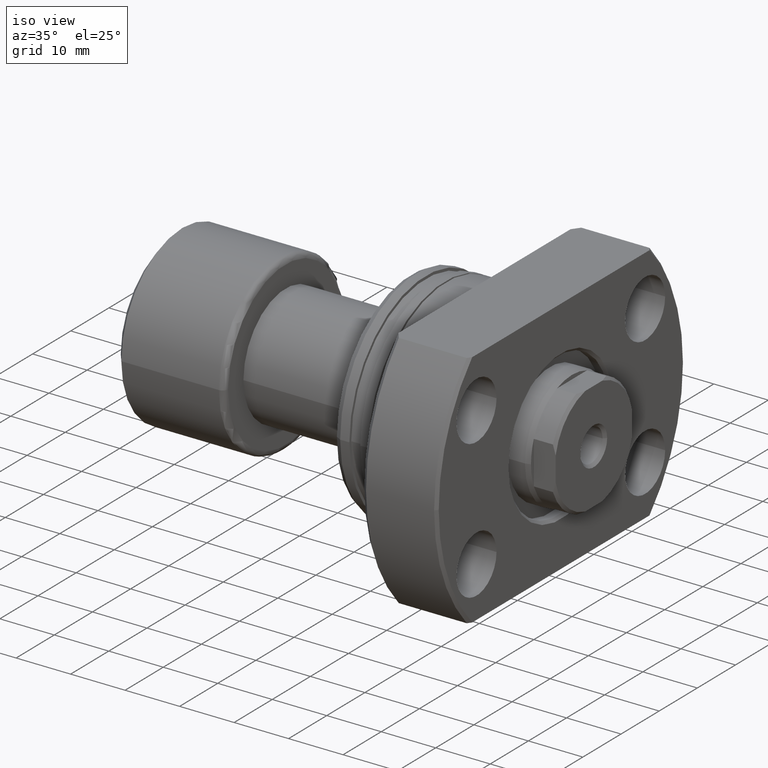
[diagram: clean part render]
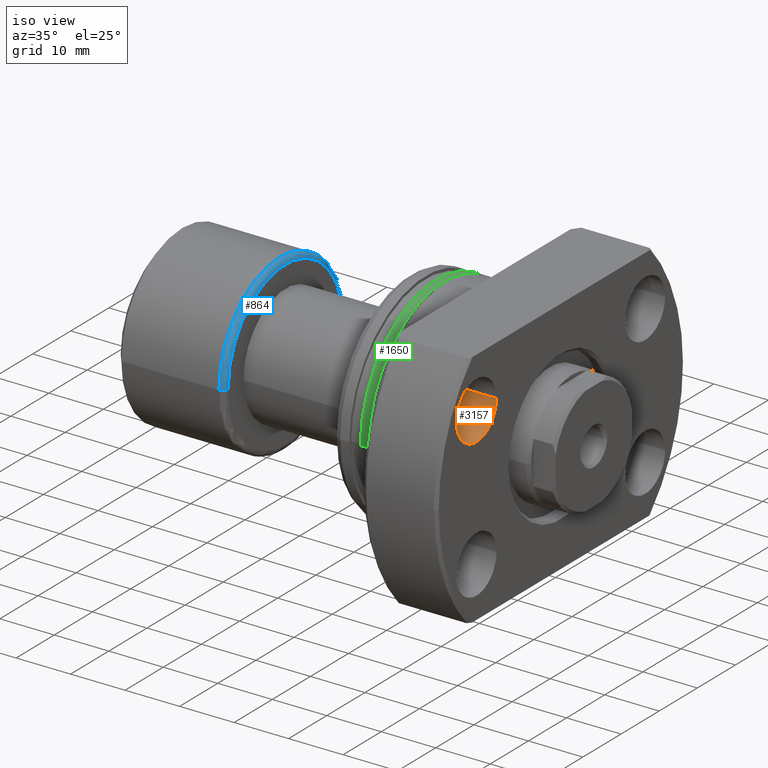
[diagram: same view with three faces highlighted in distinct colors, each labeled with its STEP entity id]
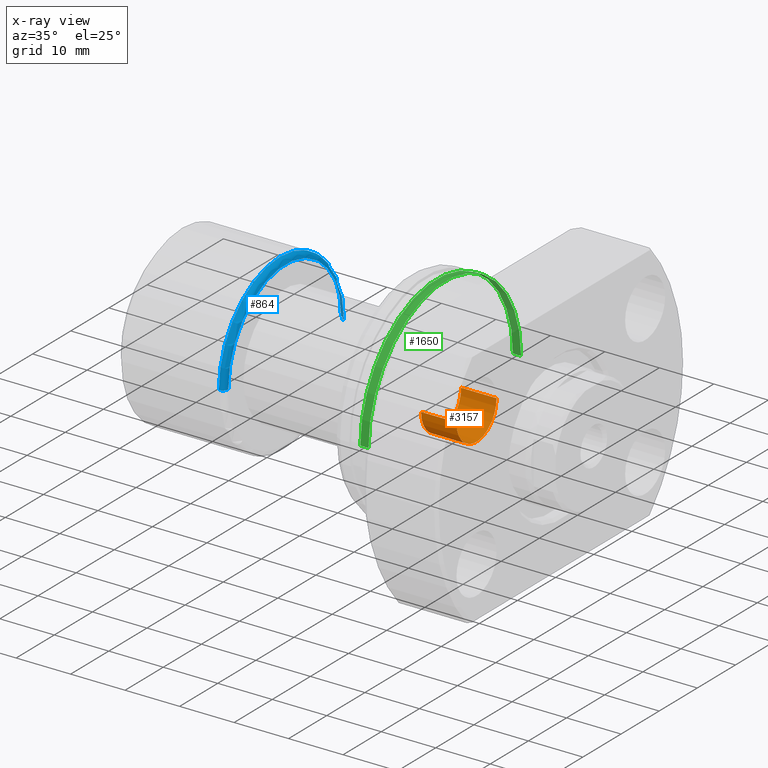
[diagram: x-ray of the same camera — body ghosted, the three highlighted faces saturated]
A machine part, iso view with three faces highlighted in distinct colors.
The next image is the same camera in x-ray (body ghosted, the three faces saturated) — at least one of them is partly hidden behind the body in this view.
Their STEP definitions:

[orange] entity #3157 — the highlighted cylindrical surface (edge-blend (fillet) strip) has radius 5.25 mm, axis along (1, -0, 0).
#181 = CARTESIAN_POINT ( 'NONE',  ( 20.99999999999952038, -16.85000000000060538, 12.74999999999999822 ) ) ;
#259 = VERTEX_POINT ( 'NONE', #2853 ) ;
#306 = CARTESIAN_POINT ( 'NONE',  ( 27.49999999999936406, -22.10000000000079368, 12.74999999999999822 ) ) ;
#374 = EDGE_CURVE ( 'NONE', #2561, #624, #1002, .T. ) ;
#525 = AXIS2_PLACEMENT_3D ( 'NONE', #306, #1317, #2313 ) ;
#529 = EDGE_LOOP ( 'NONE', ( #1550, #1288, #825, #2345 ) ) ;
#574 = DIRECTION ( 'NONE',  ( 2.907726969256361977E-14, 1.000000000000000000, 0.000000000000000000 ) ) ;
#624 = VERTEX_POINT ( 'NONE', #1526 ) ;
#742 = VERTEX_POINT ( 'NONE', #2342 ) ;
#825 = ORIENTED_EDGE ( 'NONE', *, *, #374, .T. ) ;
#900 = LINE ( 'NONE', #1898, #1763 ) ;
#1002 = CIRCLE ( 'NONE', #525, 5.250000000000000888 ) ;
#1288 = ORIENTED_EDGE ( 'NONE', *, *, #2730, .T. ) ;
#1309 = DIRECTION ( 'NONE',  ( 1.000000000000000000, -2.886466111666352516E-14, -0.000000000000000000 ) ) ;
#1317 = DIRECTION ( 'NONE',  ( 1.000000000000000000, -2.887798767815668620E-14, -6.310887241768094443E-30 ) ) ;
#1329 = EDGE_CURVE ( 'NONE', #742, #624, #2447, .T. ) ;
#1467 = DIRECTION ( 'NONE',  ( 1.000000000000000000, -2.886466111666352516E-14, -0.000000000000000000 ) ) ;
#1526 = CARTESIAN_POINT ( 'NONE',  ( 27.49999999999951683, -16.85000000000079012, 12.74999999999999822 ) ) ;
#1550 = ORIENTED_EDGE ( 'NONE', *, *, #2365, .F. ) ;
#1658 = VECTOR ( 'NONE', #1467, 1000.000000000000000 ) ;
#1763 = VECTOR ( 'NONE', #2892, 1000.000000000000000 ) ;
#1898 = CARTESIAN_POINT ( 'NONE',  ( 20.99999999999921485, -27.35000000000060538, 12.74999999999999822 ) ) ;
#1900 = DIRECTION ( 'NONE',  ( 1.000000000000000000, -2.887798767815668620E-14, -6.310887241768094443E-30 ) ) ;
#2028 = CYLINDRICAL_SURFACE ( 'NONE', #2899, 5.250000000000000888 ) ;
#2096 = CARTESIAN_POINT ( 'NONE',  ( 27.49999999999921130, -27.35000000000079368, 12.74999999999999822 ) ) ;
#2177 = CARTESIAN_POINT ( 'NONE',  ( 20.99999999999936762, -22.10000000000060538, 12.74999999999999822 ) ) ;
#2313 = DIRECTION ( 'NONE',  ( 2.907726969256361977E-14, 1.000000000000000000, 0.000000000000000000 ) ) ;
#2342 = CARTESIAN_POINT ( 'NONE',  ( 20.99999999999952038, -16.85000000000060538, 12.74999999999999822 ) ) ;
#2345 = ORIENTED_EDGE ( 'NONE', *, *, #1329, .F. ) ;
#2365 = EDGE_CURVE ( 'NONE', #259, #742, #2590, .T. ) ;
#2447 = LINE ( 'NONE', #181, #1658 ) ;
#2536 = AXIS2_PLACEMENT_3D ( 'NONE', #2177, #1900, #2894 ) ;
#2561 = VERTEX_POINT ( 'NONE', #2096 ) ;
#2590 = CIRCLE ( 'NONE', #2536, 5.250000000000000888 ) ;
#2730 = EDGE_CURVE ( 'NONE', #259, #2561, #900, .T. ) ;
#2778 = CARTESIAN_POINT ( 'NONE',  ( 20.99999999999936762, -22.10000000000060538, 12.74999999999999822 ) ) ;
#2853 = CARTESIAN_POINT ( 'NONE',  ( 20.99999999999921485, -27.35000000000060538, 12.74999999999999822 ) ) ;
#2892 = DIRECTION ( 'NONE',  ( 1.000000000000000000, -2.886466111666352516E-14, -0.000000000000000000 ) ) ;
#2894 = DIRECTION ( 'NONE',  ( 2.907726969256361977E-14, 1.000000000000000000, 0.000000000000000000 ) ) ;
#2899 = AXIS2_PLACEMENT_3D ( 'NONE', #2778, #1309, #574 ) ;
#3016 = FACE_OUTER_BOUND ( 'NONE', #529, .T. ) ;
#3157 = ADVANCED_FACE ( 'NONE', ( #3016 ), #2028, .F. ) ;

[blue] entity #864 — the highlighted toroidal blend (fillet) surface has major radius 15 mm and minor (blend) radius 1 mm.
#220 = CARTESIAN_POINT ( 'NONE',  ( 19.39999999999999858, 15.00000000000000000, 1.836970198721029589E-15 ) ) ;
#362 = CARTESIAN_POINT ( 'NONE',  ( 19.39999999999999858, 0.000000000000000000, 0.000000000000000000 ) ) ;
#387 = CARTESIAN_POINT ( 'NONE',  ( 20.39999999999999858, 15.00000000000000000, 1.898202538678397163E-15 ) ) ;
#401 = VERTEX_POINT ( 'NONE', #2571 ) ;
#560 = CARTESIAN_POINT ( 'NONE',  ( 19.40000000000000213, -16.00000000000000000, 0.000000000000000000 ) ) ;
#602 = CARTESIAN_POINT ( 'NONE',  ( 20.39999999999999858, 2.181866337020894116E-16, 0.000000000000000000 ) ) ;
#605 = DIRECTION ( 'NONE',  ( -1.000000000000000000, 0.000000000000000000, 0.000000000000000000 ) ) ;
#615 = AXIS2_PLACEMENT_3D ( 'NONE', #220, #1221, #2465 ) ;
#770 = DIRECTION ( 'NONE',  ( 0.000000000000000000, -1.000000000000000000, 0.000000000000000000 ) ) ;
#864 = ADVANCED_FACE ( 'NONE', ( #914 ), #1110, .T. ) ;
#914 = FACE_OUTER_BOUND ( 'NONE', #1739, .T. ) ;
#926 = CIRCLE ( 'NONE', #615, 1.000000000000000888 ) ;
#1110 = TOROIDAL_SURFACE ( 'NONE', #2094, 15.00000000000000000, 1.000000000000000888 ) ;
#1213 = EDGE_CURVE ( 'NONE', #401, #2597, #2022, .T. ) ;
#1221 = DIRECTION ( 'NONE',  ( 1.309811581274509052E-33, -1.224646799147353207E-16, 1.000000000000000000 ) ) ;
#1321 = DIRECTION ( 'NONE',  ( 0.000000000000000000, 0.000000000000000000, -1.000000000000000000 ) ) ;
#1333 = ORIENTED_EDGE ( 'NONE', *, *, #2921, .F. ) ;
#1370 = DIRECTION ( 'NONE',  ( 0.000000000000000000, -1.000000000000000000, 0.000000000000000000 ) ) ;
#1688 = EDGE_CURVE ( 'NONE', #401, #1897, #2891, .T. ) ;
#1739 = EDGE_LOOP ( 'NONE', ( #3210, #2264, #1333, #2358 ) ) ;
#1885 = DIRECTION ( 'NONE',  ( -1.000000000000000000, -1.069542322069065801E-17, -0.000000000000000000 ) ) ;
#1897 = VERTEX_POINT ( 'NONE', #387 ) ;
#1964 = AXIS2_PLACEMENT_3D ( 'NONE', #2741, #2451, #770 ) ;
#2004 = AXIS2_PLACEMENT_3D ( 'NONE', #602, #2104, #1370 ) ;
#2022 = CIRCLE ( 'NONE', #3114, 1.000000000000000888 ) ;
#2094 = AXIS2_PLACEMENT_3D ( 'NONE', #362, #1885, #2372 ) ;
#2104 = DIRECTION ( 'NONE',  ( -1.000000000000000000, -1.069542322069065801E-17, -0.000000000000000000 ) ) ;
#2170 = CIRCLE ( 'NONE', #1964, 16.00000000000000000 ) ;
#2253 = VERTEX_POINT ( 'NONE', #3072 ) ;
#2264 = ORIENTED_EDGE ( 'NONE', *, *, #2449, .T. ) ;
#2358 = ORIENTED_EDGE ( 'NONE', *, *, #1213, .F. ) ;
#2372 = DIRECTION ( 'NONE',  ( 1.069542322069065801E-17, -1.000000000000000000, 0.000000000000000000 ) ) ;
#2381 = CARTESIAN_POINT ( 'NONE',  ( 19.39999999999999858, -15.00000000000000000, 0.000000000000000000 ) ) ;
#2449 = EDGE_CURVE ( 'NONE', #1897, #2253, #926, .T. ) ;
#2451 = DIRECTION ( 'NONE',  ( -1.000000000000000000, -1.069542322069065801E-17, -0.000000000000000000 ) ) ;
#2465 = DIRECTION ( 'NONE',  ( 0.000000000000000000, -1.000000000000000000, -1.224646799147353454E-16 ) ) ;
#2571 = CARTESIAN_POINT ( 'NONE',  ( 20.39999999999999858, -15.00000000000000000, 0.000000000000000000 ) ) ;
#2597 = VERTEX_POINT ( 'NONE', #560 ) ;
#2741 = CARTESIAN_POINT ( 'NONE',  ( 19.40000000000000213, 2.074912104813987675E-16, 0.000000000000000000 ) ) ;
#2891 = CIRCLE ( 'NONE', #2004, 15.00000000000000000 ) ;
#2921 = EDGE_CURVE ( 'NONE', #2597, #2253, #2170, .T. ) ;
#3072 = CARTESIAN_POINT ( 'NONE',  ( 19.40000000000000213, 16.00000000000000000, 1.959434878635765131E-15 ) ) ;
#3114 = AXIS2_PLACEMENT_3D ( 'NONE', #2381, #1321, #605 ) ;
#3210 = ORIENTED_EDGE ( 'NONE', *, *, #1688, .T. ) ;

[green] entity #1650 — the highlighted cylindrical surface (partial cylindrical patch) has radius 20 mm, axis along (1, 0, 0).
#67 = EDGE_CURVE ( 'NONE', #1020, #1840, #949, .T. ) ;
#104 = CARTESIAN_POINT ( 'NONE',  ( 6.200000000001034905, -19.99999999999999645, 2.449293598294706119E-15 ) ) ;
#131 = CARTESIAN_POINT ( 'NONE',  ( 6.200000000001034905, 19.99999999999999645, 0.000000000000000000 ) ) ;
#168 = CIRCLE ( 'NONE', #2404, 19.99999999999999645 ) ;
#432 = CARTESIAN_POINT ( 'NONE',  ( 27.50000000000000355, -19.99999999999999645, 2.449293598294706119E-15 ) ) ;
#542 = DIRECTION ( 'NONE',  ( 1.000000000000000000, 1.335978326342566810E-17, -0.000000000000000000 ) ) ;
#809 = DIRECTION ( 'NONE',  ( 1.000000000000000000, 1.335978326342566810E-17, -0.000000000000000000 ) ) ;
#828 = CYLINDRICAL_SURFACE ( 'NONE', #1951, 19.99999999999999645 ) ;
#880 = DIRECTION ( 'NONE',  ( 1.000000000000000000, 1.335978326342566810E-17, -0.000000000000000000 ) ) ;
#943 = DIRECTION ( 'NONE',  ( 1.000000000000000000, 1.335978326342566810E-17, -0.000000000000000000 ) ) ;
#949 = CIRCLE ( 'NONE', #1785, 19.99999999999999645 ) ;
#1020 = VERTEX_POINT ( 'NONE', #1220 ) ;
#1042 = VECTOR ( 'NONE', #542, 1000.000000000000000 ) ;
#1082 = DIRECTION ( 'NONE',  ( 0.000000000000000000, 1.000000000000000000, 0.000000000000000000 ) ) ;
#1126 = DIRECTION ( 'NONE',  ( 0.000000000000000000, 1.000000000000000000, 0.000000000000000000 ) ) ;
#1135 = EDGE_CURVE ( 'NONE', #1246, #2087, #168, .T. ) ;
#1220 = CARTESIAN_POINT ( 'NONE',  ( 4.699999999998548894, 19.99999999999999645, 0.000000000000000000 ) ) ;
#1246 = VERTEX_POINT ( 'NONE', #131 ) ;
#1356 = CARTESIAN_POINT ( 'NONE',  ( 27.50000000000000355, 3.673940397442059375E-16, 0.000000000000000000 ) ) ;
#1430 = LINE ( 'NONE', #432, #2175 ) ;
#1483 = ORIENTED_EDGE ( 'NONE', *, *, #1135, .F. ) ;
#1618 = CARTESIAN_POINT ( 'NONE',  ( 6.200000000001034905, 8.283065623325293867E-17, 0.000000000000000000 ) ) ;
#1650 = ADVANCED_FACE ( 'NONE', ( #1821 ), #828, .T. ) ;
#1785 = AXIS2_PLACEMENT_3D ( 'NONE', #2397, #943, #2934 ) ;
#1821 = FACE_OUTER_BOUND ( 'NONE', #3014, .T. ) ;
#1840 = VERTEX_POINT ( 'NONE', #3173 ) ;
#1951 = AXIS2_PLACEMENT_3D ( 'NONE', #1356, #809, #1126 ) ;
#2055 = ORIENTED_EDGE ( 'NONE', *, *, #67, .T. ) ;
#2087 = VERTEX_POINT ( 'NONE', #104 ) ;
#2175 = VECTOR ( 'NONE', #2437, 1000.000000000000000 ) ;
#2320 = EDGE_CURVE ( 'NONE', #1840, #2087, #1430, .T. ) ;
#2397 = CARTESIAN_POINT ( 'NONE',  ( 4.699999999998548894, 6.279098133808125197E-17, 0.000000000000000000 ) ) ;
#2404 = AXIS2_PLACEMENT_3D ( 'NONE', #1618, #880, #1082 ) ;
#2437 = DIRECTION ( 'NONE',  ( 1.000000000000000000, 1.335978326342566810E-17, -0.000000000000000000 ) ) ;
#2565 = EDGE_CURVE ( 'NONE', #1020, #1246, #2780, .T. ) ;
#2780 = LINE ( 'NONE', #3089, #1042 ) ;
#2934 = DIRECTION ( 'NONE',  ( 0.000000000000000000, 1.000000000000000000, 0.000000000000000000 ) ) ;
#2997 = ORIENTED_EDGE ( 'NONE', *, *, #2320, .T. ) ;
#3014 = EDGE_LOOP ( 'NONE', ( #2055, #2997, #1483, #3148 ) ) ;
#3089 = CARTESIAN_POINT ( 'NONE',  ( 27.50000000000000355, 19.99999999999999645, 0.000000000000000000 ) ) ;
#3148 = ORIENTED_EDGE ( 'NONE', *, *, #2565, .F. ) ;
#3173 = CARTESIAN_POINT ( 'NONE',  ( 4.699999999998548894, -19.99999999999999645, 2.449293598294706119E-15 ) ) ;